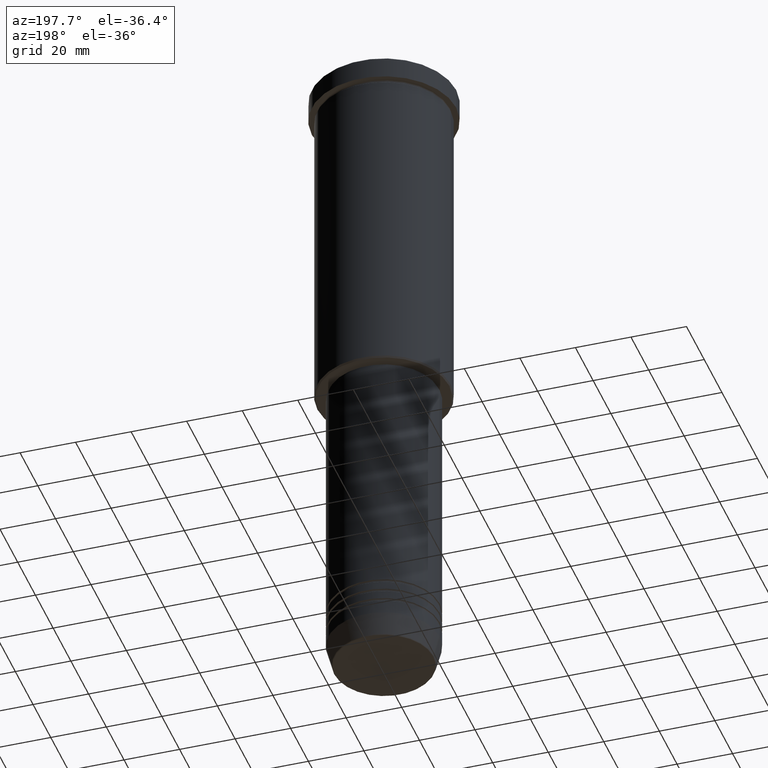
[diagram: clean part render]
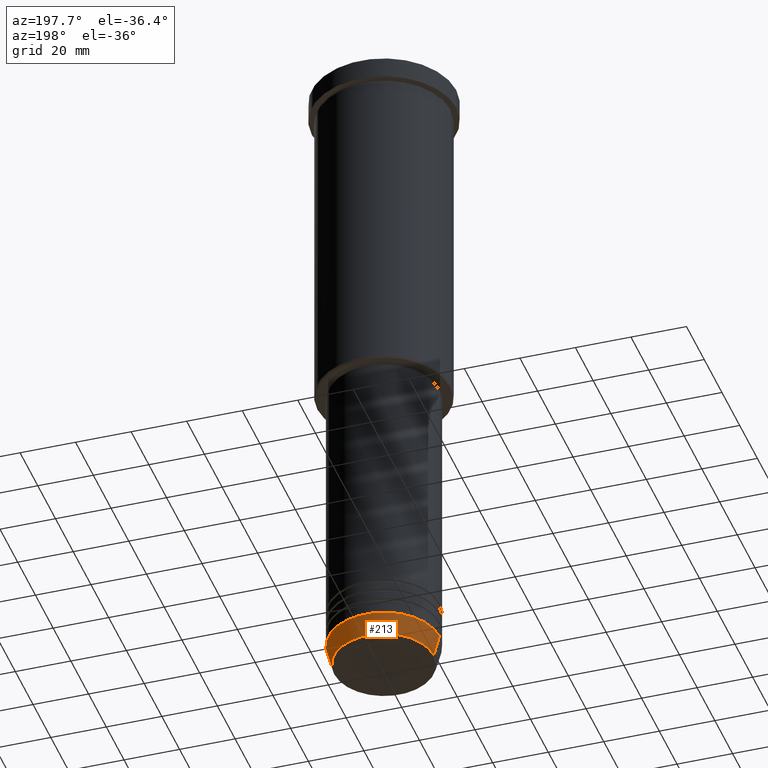
[diagram: same view with one face highlighted and labeled with its STEP entity id]
A machine part, auxiliary view. The second image highlights one B-rep face of the part: STEP entity #213.
In plain terms, the highlighted conical surface has half-angle 15 deg.
Its self-contained STEP definition (entity closure, byte-faithful):
#21 = DIRECTION ( 'NONE',  ( -0.2588190451025213501, 3.169619151431772337E-17, 0.9659258262890680902 ) ) ;
#22 = CARTESIAN_POINT ( 'NONE',  ( 20.00000000000000355, 0.000000000000000000, -232.0000000000000000 ) ) ;
#61 = CARTESIAN_POINT ( 'NONE',  ( 0.000000000000000000, 0.000000000000000000, -239.6294095225512706 ) ) ;
#93 = VECTOR ( 'NONE', #21, 1000.000000000000000 ) ;
#113 = AXIS2_PLACEMENT_3D ( 'NONE', #699, #1052, #777 ) ;
#132 = DIRECTION ( 'NONE',  ( 1.000000000000000000, 0.000000000000000000, 0.000000000000000000 ) ) ;
#198 = CARTESIAN_POINT ( 'NONE',  ( -20.00000000000000355, 2.449293598294706907E-15, -232.0000000000000000 ) ) ;
#204 = AXIS2_PLACEMENT_3D ( 'NONE', #61, #404, #423 ) ;
#213 = ADVANCED_FACE ( 'NONE', ( #821 ), #577, .T. ) ;
#237 = ORIENTED_EDGE ( 'NONE', *, *, #509, .T. ) ;
#259 = AXIS2_PLACEMENT_3D ( 'NONE', #946, #1035, #132 ) ;
#385 = DIRECTION ( 'NONE',  ( 0.2588190451025213501, 0.000000000000000000, 0.9659258262890680902 ) ) ;
#404 = DIRECTION ( 'NONE',  ( -0.000000000000000000, -0.000000000000000000, 1.000000000000000000 ) ) ;
#423 = DIRECTION ( 'NONE',  ( 1.000000000000000000, 0.000000000000000000, 0.000000000000000000 ) ) ;
#457 = CIRCLE ( 'NONE', #204, 17.95570587970607690 ) ;
#506 = CARTESIAN_POINT ( 'NONE',  ( 20.00000000000000355, 0.000000000000000000, -232.0000000000000000 ) ) ;
#509 = EDGE_CURVE ( 'NONE', #1085, #602, #640, .T. ) ;
#557 = ORIENTED_EDGE ( 'NONE', *, *, #1006, .F. ) ;
#577 = CONICAL_SURFACE ( 'NONE', #259, 20.00000000000000355, 0.2617993877991500740 ) ;
#602 = VERTEX_POINT ( 'NONE', #198 ) ;
#640 = LINE ( 'NONE', #1004, #93 ) ;
#666 = VERTEX_POINT ( 'NONE', #720 ) ;
#699 = CARTESIAN_POINT ( 'NONE',  ( 0.000000000000000000, 0.000000000000000000, -232.0000000000000000 ) ) ;
#701 = ORIENTED_EDGE ( 'NONE', *, *, #1172, .F. ) ;
#720 = CARTESIAN_POINT ( 'NONE',  ( 17.95570587970607690, 0.000000000000000000, -239.6294095225512706 ) ) ;
#777 = DIRECTION ( 'NONE',  ( 1.000000000000000000, 0.000000000000000000, 0.000000000000000000 ) ) ;
#821 = FACE_OUTER_BOUND ( 'NONE', #1030, .T. ) ;
#836 = LINE ( 'NONE', #22, #894 ) ;
#894 = VECTOR ( 'NONE', #385, 1000.000000000000000 ) ;
#910 = CIRCLE ( 'NONE', #113, 20.00000000000000355 ) ;
#924 = EDGE_CURVE ( 'NONE', #666, #1085, #457, .T. ) ;
#946 = CARTESIAN_POINT ( 'NONE',  ( 0.000000000000000000, 0.000000000000000000, -232.0000000000000000 ) ) ;
#998 = CARTESIAN_POINT ( 'NONE',  ( -17.95570587970607690, 2.324116685748021371E-15, -239.6294095225512706 ) ) ;
#1000 = VERTEX_POINT ( 'NONE', #506 ) ;
#1004 = CARTESIAN_POINT ( 'NONE',  ( -20.00000000000000355, 2.449293598294706907E-15, -232.0000000000000000 ) ) ;
#1006 = EDGE_CURVE ( 'NONE', #1000, #602, #910, .T. ) ;
#1030 = EDGE_LOOP ( 'NONE', ( #1131, #237, #557, #701 ) ) ;
#1035 = DIRECTION ( 'NONE',  ( -0.000000000000000000, -0.000000000000000000, 1.000000000000000000 ) ) ;
#1052 = DIRECTION ( 'NONE',  ( -0.000000000000000000, -0.000000000000000000, 1.000000000000000000 ) ) ;
#1085 = VERTEX_POINT ( 'NONE', #998 ) ;
#1131 = ORIENTED_EDGE ( 'NONE', *, *, #924, .T. ) ;
#1172 = EDGE_CURVE ( 'NONE', #666, #1000, #836, .T. ) ;